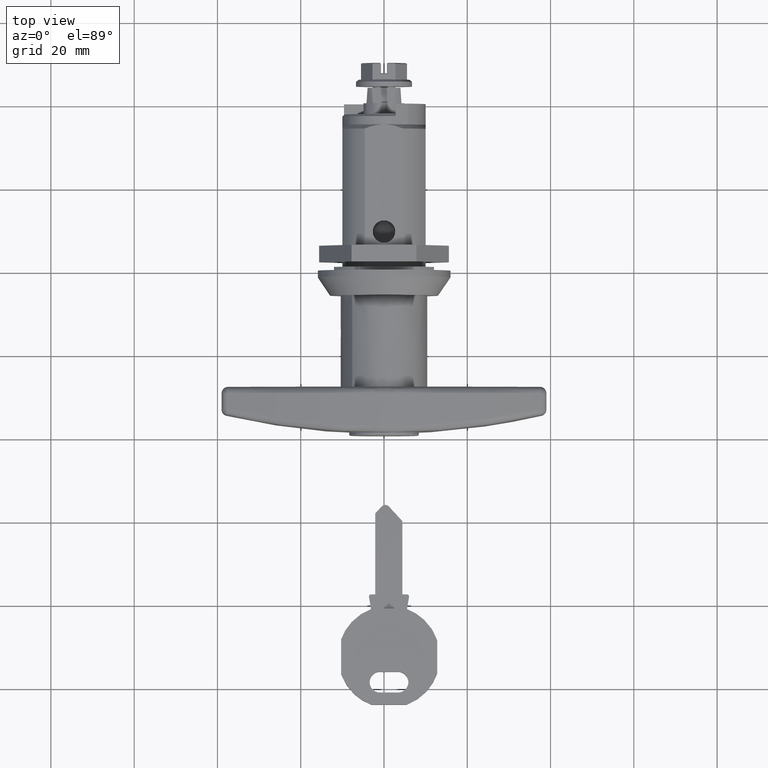
[diagram: clean part render]
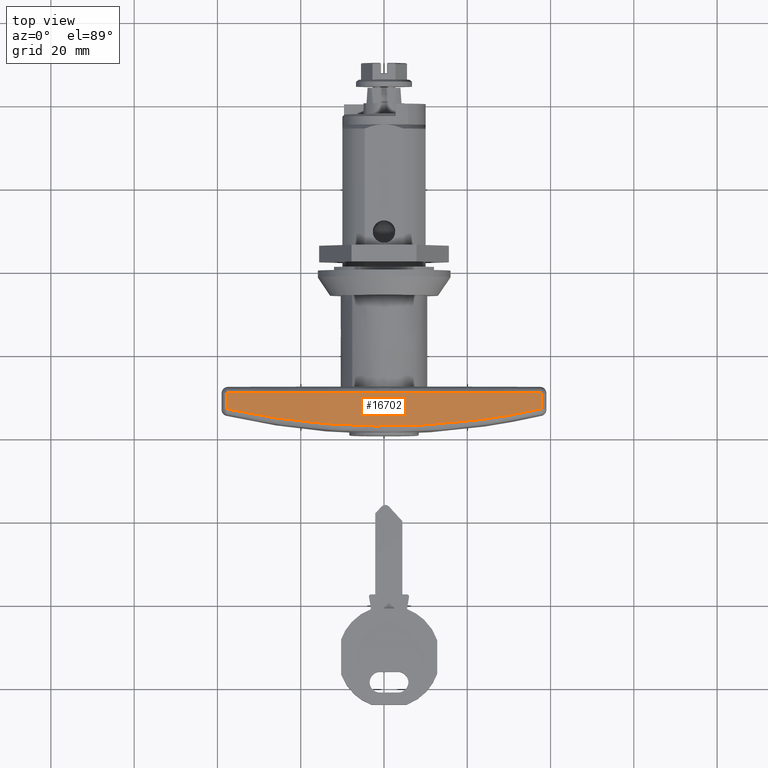
[diagram: same view with one face highlighted and labeled with its STEP entity id]
A machine part, top view. The second image highlights one B-rep face of the part: STEP entity #16702.
In plain terms, the highlighted face is a freeform B-spline surface patch.
Its self-contained STEP definition (entity closure, byte-faithful):
#13457=CARTESIAN_POINT('',(-32.996505361879699,37.831371514158000,7.269070953320770));
#13458=VERTEX_POINT('',#13457);
#13632=CARTESIAN_POINT('',(-32.996505361879798,-37.831371514157851,7.269070953320660));
#13633=VERTEX_POINT('',#13632);
#13647=CARTESIAN_POINT('',(-32.996505361879699,37.831371514157958,7.269070953320761));
#13648=CARTESIAN_POINT('',(-33.687881060059752,34.754861600336113,7.965929253690342));
#13649=CARTESIAN_POINT('',(-34.294535568483830,31.661079631294729,8.577402229105436));
#13650=CARTESIAN_POINT('',(-35.338286853927762,25.438947009289642,9.629450907051366));
#13651=CARTESIAN_POINT('',(-35.775385007555002,22.310596638671740,10.070028013635911));
#13652=CARTESIAN_POINT('',(-36.478339997083602,16.018983235767710,10.778580850933920));
#13653=CARTESIAN_POINT('',(-36.744200761099940,12.855721005093500,11.046560548301260));
#13654=CARTESIAN_POINT('',(-37.101352482848469,6.493604827578209,11.406559300656690));
#13655=CARTESIAN_POINT('',(-37.192650364729943,3.294752292297948,11.498585333473599));
#13656=CARTESIAN_POINT('',(-37.194457774184293,-0.726712515815693,11.500407155662240));
#13657=CARTESIAN_POINT('',(-37.189198772246797,-1.532151399411392,11.495106216645210));
#13658=CARTESIAN_POINT('',(-37.172804563931081,-2.742043894437813,11.478581279453961));
#13659=CARTESIAN_POINT('',(-37.165918823307251,-3.145786275179753,11.471640631746411));
#13660=CARTESIAN_POINT('',(-37.149314059342970,-3.953127907759813,11.454903463401250));
#13661=CARTESIAN_POINT('',(-37.100751704900908,-5.969764983652761,11.405953885458439));
#13662=CARTESIAN_POINT('',(-37.017111902662322,-7.977859596443087,11.321647202709769));
#13663=CARTESIAN_POINT('',(-36.750143797371173,-12.781156998086161,11.052550949851550));
#13664=CARTESIAN_POINT('',(-36.483911297946889,-15.961862751427780,10.784196535466210));
#13665=CARTESIAN_POINT('',(-35.779448171683420,-22.281387931437099,10.074123516556730));
#13666=CARTESIAN_POINT('',(-35.341211692549201,-25.420205932234818,9.632399007726152));
#13667=CARTESIAN_POINT('',(-34.295500357203473,-31.656628560714879,8.578374676745701));
#13668=CARTESIAN_POINT('',(-33.688022448799828,-34.754232443335603,7.966071763641525));
#13669=CARTESIAN_POINT('',(-32.996505361879748,-37.831371514157901,7.269070953320640));
#13670=B_SPLINE_CURVE_WITH_KNOTS('',3,(#13647,#13648,#13649,#13650,#13651,#13652,#13653,#13654,#13655,#13656,#13657,#13658,#13659,#13660,#13661,#13662,#13663,#13664,#13665,#13666,#13667,#13668,#13669),.UNSPECIFIED.,.F.,.U.,(4,2,2,2,2,2,2,1,2,2,2,4),(0.0,0.125000000000000,0.250000000000000,0.375000000000000,0.500000000000000,0.531250000000000,0.546875000000001,0.562500000000001,0.625000000000000,0.750000000000000,0.875000000000000,1.0),.UNSPECIFIED.);
#13671=EDGE_CURVE('',#13458,#13633,#13670,.T.);
#15103=CARTESIAN_POINT('',(-29.203311659179651,-37.831371514157851,7.269070953320660));
#15104=VERTEX_POINT('',#15103);
#15202=CARTESIAN_POINT('',(-29.203311659179651,-2.982578289047300,11.474085334861259));
#15203=VERTEX_POINT('',#15202);
#15217=CARTESIAN_POINT('',(-29.203311659179651,-37.831371514157851,7.269070953320660));
#15218=CARTESIAN_POINT('',(-29.203311659179654,-20.623593803157242,11.166793718637550));
#15219=CARTESIAN_POINT('',(-29.203311659179651,-2.982578289047300,11.474085334861259));
#15227=(BOUNDED_CURVE()B_SPLINE_CURVE(2,(#15217,#15218,#15219),.UNSPECIFIED.,.F.,.U.)CURVE()GEOMETRIC_REPRESENTATION_ITEM()QUASI_UNIFORM_CURVE()RATIONAL_B_SPLINE_CURVE((1.0,0.994734411419382,1.0))REPRESENTATION_ITEM(''));
#15228=EDGE_CURVE('',#15104,#15203,#15227,.T.);
#15348=CARTESIAN_POINT('',(-29.203311659179700,2.982578289047255,11.474085334861300));
#15349=VERTEX_POINT('',#15348);
#15363=CARTESIAN_POINT('',(-29.203311659179651,-2.982578289047300,11.474085334861259));
#15364=CARTESIAN_POINT('',(-29.203311659179651,-2.733967386082509,11.478415927174490));
#15365=CARTESIAN_POINT('',(-29.199024724145271,-2.485430264958824,11.482203683674941));
#15366=CARTESIAN_POINT('',(-29.187274197280392,-1.988404825226973,11.488696528847630));
#15367=CARTESIAN_POINT('',(-29.179811764574421,-1.739916485271315,11.491401602263039));
#15368=CARTESIAN_POINT('',(-29.165943566753580,-1.242911133327051,11.495730178740720));
#15369=CARTESIAN_POINT('',(-29.159551018137869,-0.994393879289370,11.497353665243770));
#15370=CARTESIAN_POINT('',(-29.150673972753790,-0.497278506523154,11.499518746329210));
#15371=CARTESIAN_POINT('',(-29.148201688804232,-0.248680164059916,11.500060317822371));
#15372=CARTESIAN_POINT('',(-29.148201280137279,0.248616359787880,11.500060410463661));
#15373=CARTESIAN_POINT('',(-29.150673297288019,0.497227937969086,11.499518901266621));
#15374=CARTESIAN_POINT('',(-29.159550087006028,0.994354475919217,11.497353902148310));
#15375=CARTESIAN_POINT('',(-29.165942640131419,1.242876548776691,11.495730436346010));
#15376=CARTESIAN_POINT('',(-29.179811014653641,1.739890986085818,11.491401867940670));
#15377=CARTESIAN_POINT('',(-29.187273622924579,1.988383597082891,11.488696782209949));
#15378=CARTESIAN_POINT('',(-29.199024518388910,2.485418496011159,11.482203861365459));
#15379=CARTESIAN_POINT('',(-29.203311659179711,2.733960805457067,11.478416041803481));
#15380=CARTESIAN_POINT('',(-29.203311659179700,2.982578289047260,11.474085334861300));
#15381=B_SPLINE_CURVE_WITH_KNOTS('',3,(#15363,#15364,#15365,#15366,#15367,#15368,#15369,#15370,#15371,#15372,#15373,#15374,#15375,#15376,#15377,#15378,#15379,#15380),.UNSPECIFIED.,.F.,.U.,(4,2,2,2,2,2,2,2,4),(0.0,0.125000000000000,0.250000000000000,0.375000000000000,0.500000000000000,0.625000000000000,0.750000000000000,0.875000000000000,1.0),.UNSPECIFIED.);
#15382=EDGE_CURVE('',#15203,#15349,#15381,.T.);
#15592=CARTESIAN_POINT('',(-29.203311659179651,37.831371514158000,7.269070953320770));
#15593=VERTEX_POINT('',#15592);
#15625=CARTESIAN_POINT('',(-29.203311659179700,2.982578289047255,11.474085334861300));
#15626=CARTESIAN_POINT('',(-29.203311659179651,20.623593803157487,11.166793718637608));
#15627=CARTESIAN_POINT('',(-29.203311659179651,37.831371514158000,7.269070953320770));
#15635=(BOUNDED_CURVE()B_SPLINE_CURVE(2,(#15625,#15626,#15627),.UNSPECIFIED.,.F.,.U.)CURVE()GEOMETRIC_REPRESENTATION_ITEM()QUASI_UNIFORM_CURVE()RATIONAL_B_SPLINE_CURVE((1.0,0.994734411419383,1.0))REPRESENTATION_ITEM(''));
#15636=EDGE_CURVE('',#15349,#15593,#15635,.T.);
#16295=CARTESIAN_POINT('',(-29.203311659179651,37.831371514158000,7.269070953320770));
#16296=CARTESIAN_POINT('',(-32.996505361879699,37.831371514158000,7.269070953320770));
#16297=QUASI_UNIFORM_CURVE('',1,(#16295,#16296),.UNSPECIFIED.,.F.,.U.);
#16298=EDGE_CURVE('',#15593,#13458,#16297,.T.);
#16347=CARTESIAN_POINT('',(-32.996505361879798,-37.831371514157851,7.269070953320660));
#16348=CARTESIAN_POINT('',(-29.203311659179651,-37.831371514157851,7.269070953320660));
#16349=QUASI_UNIFORM_CURVE('',1,(#16347,#16348),.UNSPECIFIED.,.F.,.U.);
#16350=EDGE_CURVE('',#13633,#15104,#16349,.T.);
#16680=CARTESIAN_POINT('',(-37.395261533253091,-41.493719717249441,6.397085035191108));
#16681=CARTESIAN_POINT('',(-28.942024983238223,-41.493719717249441,6.397085035191108));
#16682=CARTESIAN_POINT('',(-37.395261533253098,0.010055167787793,16.762277679401286));
#16683=CARTESIAN_POINT('',(-28.942024983238220,0.010055167787793,16.762277679401286));
#16684=CARTESIAN_POINT('',(-37.395261533253098,41.512648859579159,6.392356507400219));
#16685=CARTESIAN_POINT('',(-28.942024983238230,41.512648859579159,6.392356507400219));
#16693=(BOUNDED_SURFACE()B_SPLINE_SURFACE(1,2,((#16680,#16682,#16684),(#16681,#16683,#16685)),.UNSPECIFIED.,.F.,.F.,.U.)B_SPLINE_SURFACE_WITH_KNOTS((2,2),(3,3),(0.0,8.453236550014864),(2.177547209525108,86.450272328591353),.UNSPECIFIED.)GEOMETRIC_REPRESENTATION_ITEM()RATIONAL_B_SPLINE_SURFACE(((0.998287191041798,0.965910713564121,0.992903058358987),(0.998287191041798,0.965910713564121,0.992903058358987)))REPRESENTATION_ITEM('')SURFACE());
#16694=ORIENTED_EDGE('',*,*,#16298,.T.);
#16695=ORIENTED_EDGE('',*,*,#13671,.T.);
#16696=ORIENTED_EDGE('',*,*,#16350,.T.);
#16697=ORIENTED_EDGE('',*,*,#15228,.T.);
#16698=ORIENTED_EDGE('',*,*,#15382,.T.);
#16699=ORIENTED_EDGE('',*,*,#15636,.T.);
#16700=EDGE_LOOP('',(#16694,#16695,#16696,#16697,#16698,#16699));
#16701=FACE_OUTER_BOUND('',#16700,.T.);
#16702=ADVANCED_FACE('',(#16701),#16693,.T.);